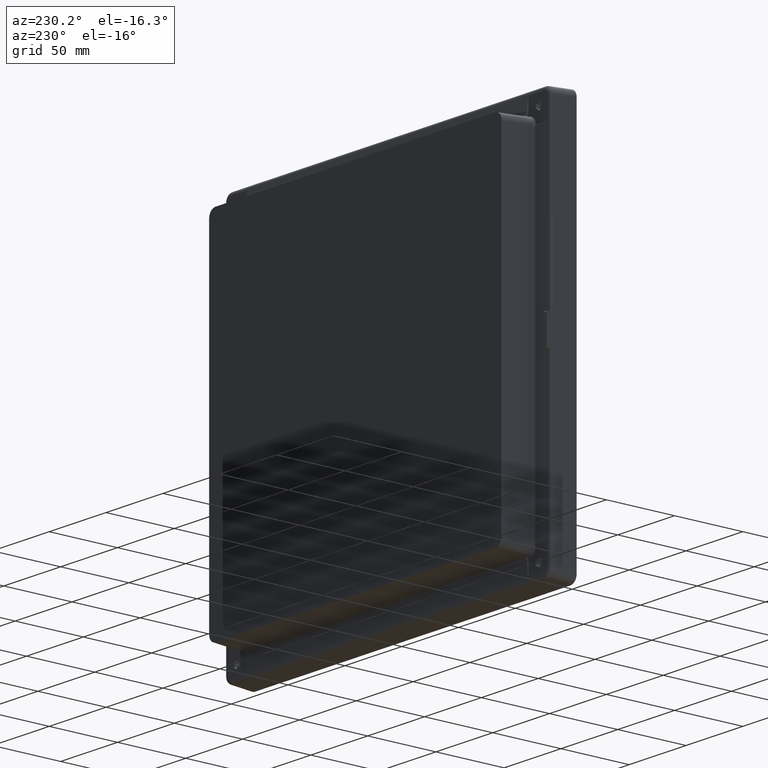
[diagram: clean part render]
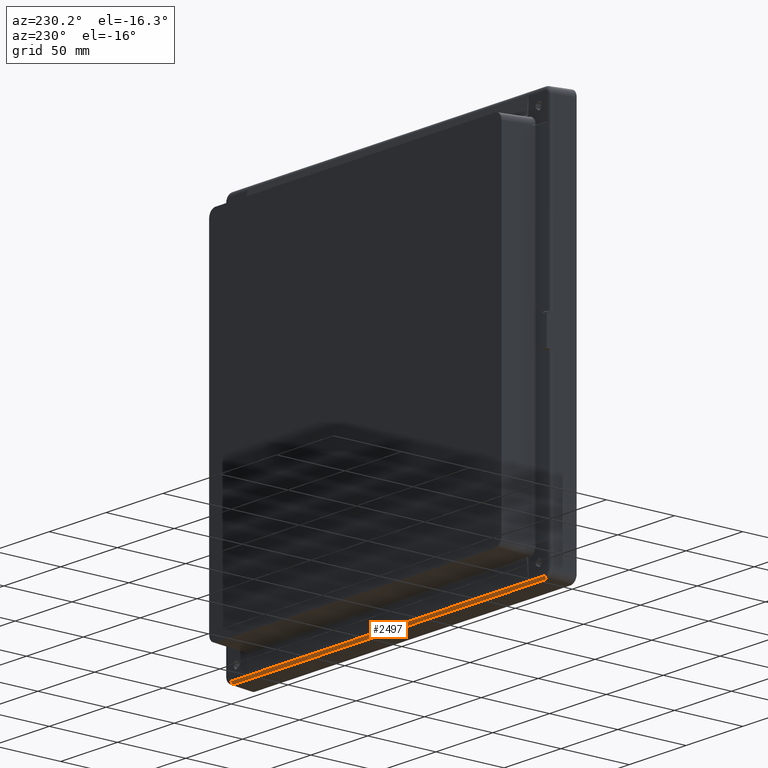
[diagram: same view with one face highlighted and labeled with its STEP entity id]
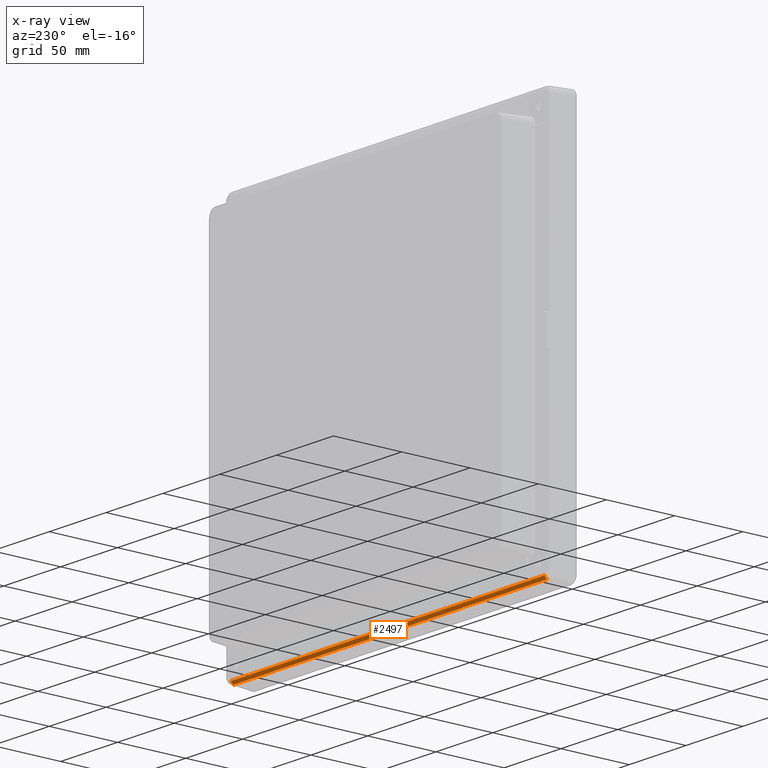
[diagram: x-ray of the same camera — body ghosted, the highlighted face saturated]
A machine part, auxiliary view. The second image highlights one B-rep face of the part: STEP entity #2497.
The next image is the same camera in x-ray: the body ghosted, the highlighted face saturated — about 0% of this face is hidden behind the body in this view.
In plain terms, the highlighted cylindrical surface (edge-blend (fillet) strip) has radius 2 mm, axis along (1, 0, 0).
Its self-contained STEP definition (entity closure, byte-faithful):
#1 = VERTEX_POINT ( 'NONE', #5153 ) ;
#3 = EDGE_CURVE ( 'NONE', #1, #6, #5152, .T. ) ;
#6 = VERTEX_POINT ( 'NONE', #5151 ) ;
#1466 = VERTEX_POINT ( 'NONE', #9699 ) ;
#1560 = EDGE_CURVE ( 'NONE', #1466, #1561, #9869, .T. ) ;
#1561 = VERTEX_POINT ( 'NONE', #9868 ) ;
#2497 = ADVANCED_FACE ( 'NONE', ( #12240 ), #12239, .T. ) ;
#2498 = EDGE_LOOP ( 'NONE', ( #2499, #2503, #2505, #2507 ) ) ;
#2499 = ORIENTED_EDGE ( 'NONE', *, *, #2500, .F. ) ;
#2500 = EDGE_CURVE ( 'NONE', #1561, #6, #12234, .T. ) ;
#2503 = ORIENTED_EDGE ( 'NONE', *, *, #1560, .F. ) ;
#2505 = ORIENTED_EDGE ( 'NONE', *, *, #2522, .F. ) ;
#2507 = ORIENTED_EDGE ( 'NONE', *, *, #3, .T. ) ;
#2522 = EDGE_CURVE ( 'NONE', #1, #1466, #12272, .T. ) ;
#5140 = CARTESIAN_POINT ( 'NONE',  ( -137.9236508560150300, 10.16517196802754200, -142.7605457326960200 ) ) ;
#5141 = CARTESIAN_POINT ( 'NONE',  ( -137.9236508560150600, 10.14244944263161100, -142.9965281815964000 ) ) ;
#5142 = CARTESIAN_POINT ( 'NONE',  ( -137.9236508560150300, 10.07733737574335500, -143.2283658832249100 ) ) ;
#5143 = CARTESIAN_POINT ( 'NONE',  ( -137.9236508560150600, 9.870414903052044100, -143.6549795347797800 ) ) ;
#5144 = CARTESIAN_POINT ( 'NONE',  ( -137.9236508560150300, 9.728659317384337900, -143.8496424616119500 ) ) ;
#5145 = CARTESIAN_POINT ( 'NONE',  ( -137.9236508560150600, 9.386152048331291900, -144.1775218419387800 ) ) ;
#5146 = CARTESIAN_POINT ( 'NONE',  ( -137.9236508560150900, 9.185491105669305200, -144.3106514300882300 ) ) ;
#5147 = CARTESIAN_POINT ( 'NONE',  ( -137.9236508560150600, 8.750257664290012700, -144.4987683323134300 ) ) ;
#5148 = CARTESIAN_POINT ( 'NONE',  ( -137.9236508560150300, 8.515800472314669600, -144.5537058084284800 ) ) ;
#5149 = CARTESIAN_POINT ( 'NONE',  ( -137.9236508560150300, 8.279051483778996400, -144.5661132971651500 ) ) ;
#5151 = CARTESIAN_POINT ( 'NONE',  ( -137.9236508560150300, 10.16517196802754200, -142.7605457326960200 ) ) ;
#5152 = B_SPLINE_CURVE_WITH_KNOTS ( 'NONE', 3,
 ( #5149, #5148, #5147, #5146, #5145, #5144, #5143, #5142, #5141, #5140 ),
 .UNSPECIFIED., .F., .F.,
 ( 4, 2, 2, 2, 4 ),
 ( 0.0000000000000000000, 0.2500000000000000000, 0.5000000000000000000, 0.7500000000000000000, 1.000000000000000000 ),
 .UNSPECIFIED. ) ;
#5153 = CARTESIAN_POINT ( 'NONE',  ( -137.9236508560150300, 8.279051483778996400, -144.5661132971651500 ) ) ;
#9699 = CARTESIAN_POINT ( 'NONE',  ( 137.9236508560150000, 8.279051483778996400, -144.5661132971651500 ) ) ;
#9864 = CARTESIAN_POINT ( 'NONE',  ( 137.9236508560150000, 10.16517196802754500, -142.7605457326959900 ) ) ;
#9865 = CARTESIAN_POINT ( 'NONE',  ( 137.9236508561280600, 10.06567134505126400, -143.7938992120255400 ) ) ;
#9866 = CARTESIAN_POINT ( 'NONE',  ( 137.9236508561477900, 9.315761595787249000, -144.5117816224333500 ) ) ;
#9867 = CARTESIAN_POINT ( 'NONE',  ( 137.9236508560150000, 8.279051483778996400, -144.5661132971651500 ) ) ;
#9868 = CARTESIAN_POINT ( 'NONE',  ( 137.9236508560150000, 10.16517196802754500, -142.7605457326959900 ) ) ;
#9869 =( BOUNDED_CURVE ( )  B_SPLINE_CURVE ( 3, ( #9867, #9866, #9865, #9864 ),
 .UNSPECIFIED., .F., .T. ) 
 B_SPLINE_CURVE_WITH_KNOTS ( ( 4, 4 ),
 ( 0.0000000000000000000, 1.000000000000000000 ),
 .UNSPECIFIED. ) 
 CURVE ( )  GEOMETRIC_REPRESENTATION_ITEM ( )  RATIONAL_B_SPLINE_CURVE ( ( 1.000000000000000000, 0.8383766562563157400, 0.8383766562563157400, 1.000000000000000000 ) ) 
 REPRESENTATION_ITEM ( '' )  );
#12234 = LINE ( 'NONE', #12284, #12283 ) ;
#12235 = DIRECTION ( 'NONE',  ( 0.0000000000000000000, 0.0000000000000000000, -1.000000000000000000 ) ) ;
#12236 = DIRECTION ( 'NONE',  ( 1.000000000000000000, 0.0000000000000000000, 0.0000000000000000000 ) ) ;
#12237 = CARTESIAN_POINT ( 'NONE',  ( 143.8499999999999900, 8.174379571293100000, -142.5688542276560000 ) ) ;
#12238 = AXIS2_PLACEMENT_3D ( 'NONE', #12237, #12236, #12235 ) ;
#12239 = CYLINDRICAL_SURFACE ( 'NONE', #12238, 2.000000000000001800 ) ;
#12240 = FACE_OUTER_BOUND ( 'NONE', #2498, .T. ) ;
#12266 = DIRECTION ( 'NONE',  ( 1.000000000000000000, 0.0000000000000000000, 0.0000000000000000000 ) ) ;
#12267 = VECTOR ( 'NONE', #12266, 1000.000000000000000 ) ;
#12268 = CARTESIAN_POINT ( 'NONE',  ( -1.387778780781445700E-014, 8.279051483778996400, -144.5661132971651500 ) ) ;
#12272 = LINE ( 'NONE', #12268, #12267 ) ;
#12282 = DIRECTION ( 'NONE',  ( -1.000000000000000000, -1.257741848631723700E-017, -1.006193478905379000E-016 ) ) ;
#12283 = VECTOR ( 'NONE', #12282, 1000.000000000000000 ) ;
#12284 = CARTESIAN_POINT ( 'NONE',  ( -1.387778780781445700E-014, 10.16517196802754300, -142.7605457326959900 ) ) ;